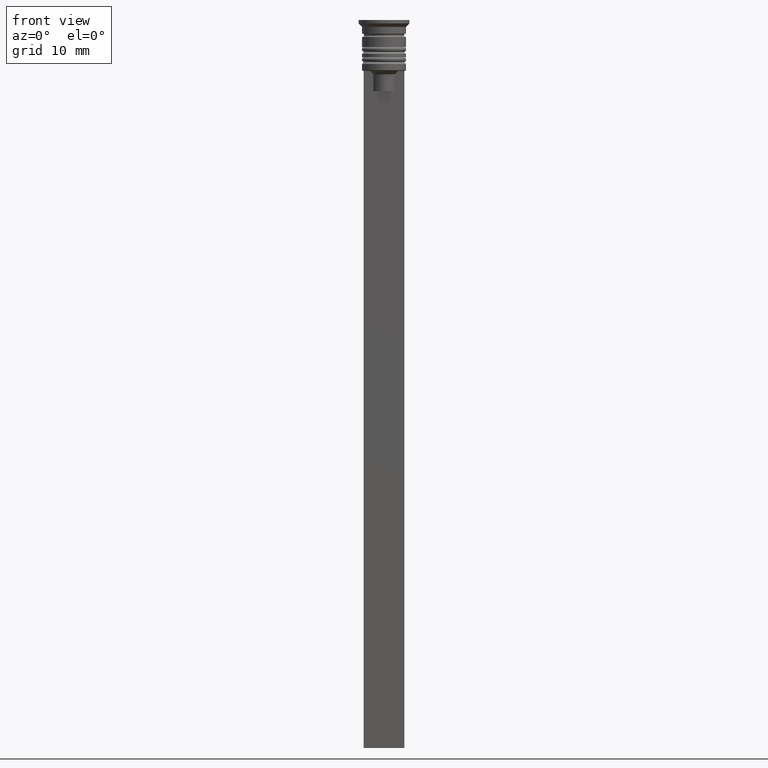
[diagram: clean part render]
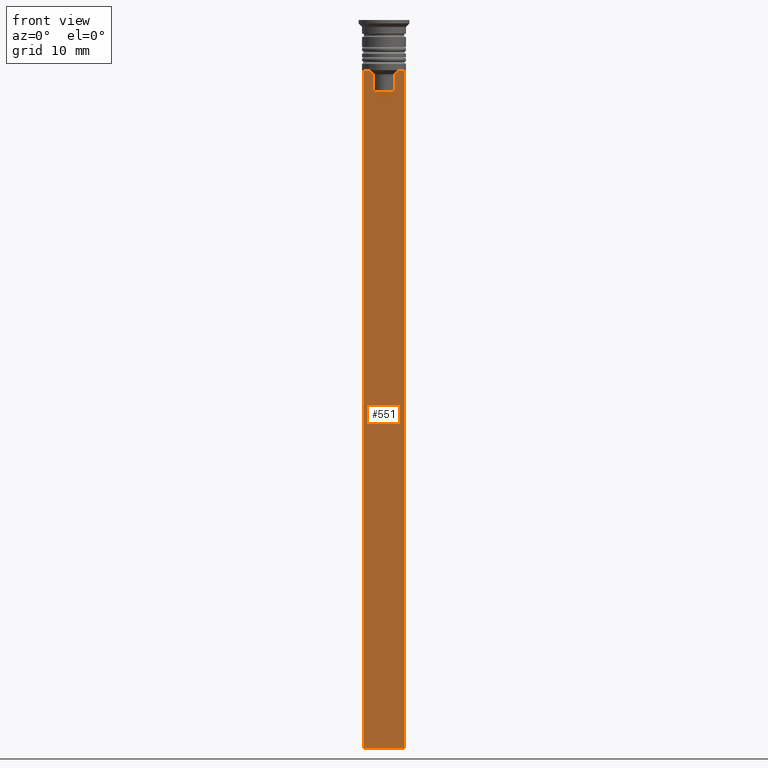
[diagram: same view with one face highlighted and labeled with its STEP entity id]
A machine part, front view. The second image highlights one B-rep face of the part: STEP entity #551.
In plain terms, the highlighted planar face has unit normal (0, -1, -0).
Its self-contained STEP definition (entity closure, byte-faithful):
#96 = DIRECTION ( 'NONE',  ( 1.000000000000000000, 0.000000000000000000, 0.000000000000000000 ) ) ;
#121 = ORIENTED_EDGE ( 'NONE', *, *, #888, .T. ) ;
#152 = EDGE_CURVE ( 'NONE', #1726, #988, #1025, .T. ) ;
#154 = DIRECTION ( 'NONE',  ( 1.000000000000000000, 0.000000000000000000, 0.000000000000000000 ) ) ;
#157 = VECTOR ( 'NONE', #1412, 1000.000000000000000 ) ;
#203 = EDGE_CURVE ( 'NONE', #1452, #400, #876, .T. ) ;
#257 = CARTESIAN_POINT ( 'NONE',  ( 2.999999999999995559, -0.3500000000000000333, -107.5000000000000000 ) ) ;
#266 = LINE ( 'NONE', #1092, #383 ) ;
#329 = ORIENTED_EDGE ( 'NONE', *, *, #837, .F. ) ;
#343 = EDGE_CURVE ( 'NONE', #1557, #1524, #266, .T. ) ;
#344 = ORIENTED_EDGE ( 'NONE', *, *, #1063, .F. ) ;
#346 = CARTESIAN_POINT ( 'NONE',  ( 1.952040775369266346, -0.3500000000000000333, -7.667021484535463394 ) ) ;
#368 = CARTESIAN_POINT ( 'NONE',  ( 1.612451549659713601, -0.3500000000000000333, -10.49999999999999822 ) ) ;
#377 = VECTOR ( 'NONE', #154, 1000.000000000000000 ) ;
#383 = VECTOR ( 'NONE', #96, 1000.000000000000000 ) ;
#400 = VERTEX_POINT ( 'NONE', #257 ) ;
#429 = LINE ( 'NONE', #1312, #1814 ) ;
#477 = DIRECTION ( 'NONE',  ( 0.000000000000000000, 0.000000000000000000, -1.000000000000000000 ) ) ;
#485 = VERTEX_POINT ( 'NONE', #943 ) ;
#551 = ADVANCED_FACE ( 'NONE', ( #587 ), #629, .T. ) ;
#587 = FACE_OUTER_BOUND ( 'NONE', #1164, .T. ) ;
#627 = CARTESIAN_POINT ( 'NONE',  ( 2.121320343559647270, -0.3500000000000000333, -7.500000000000000000 ) ) ;
#629 = PLANE ( 'NONE',  #1729 ) ;
#654 = CARTESIAN_POINT ( 'NONE',  ( -1.952043732028444500, -0.3500000000000000333, -7.667018567316270961 ) ) ;
#706 = DIRECTION ( 'NONE',  ( 0.000000000000000000, 0.000000000000000000, -1.000000000000000000 ) ) ;
#741 = CARTESIAN_POINT ( 'NONE',  ( 1.612451549659713601, -0.3500000000000000333, 0.000000000000000000 ) ) ;
#783 = EDGE_CURVE ( 'NONE', #400, #485, #1932, .T. ) ;
#833 = VERTEX_POINT ( 'NONE', #1578 ) ;
#837 = EDGE_CURVE ( 'NONE', #1524, #1726, #1072, .T. ) ;
#876 = LINE ( 'NONE', #1877, #963 ) ;
#888 = EDGE_CURVE ( 'NONE', #1716, #485, #429, .T. ) ;
#891 = VECTOR ( 'NONE', #1909, 1000.000000000000000 ) ;
#943 = CARTESIAN_POINT ( 'NONE',  ( -3.000000000000004441, -0.3500000000000000333, -107.5000000000000000 ) ) ;
#963 = VECTOR ( 'NONE', #1363, 1000.000000000000000 ) ;
#985 = CARTESIAN_POINT ( 'NONE',  ( 2.999999999999995559, -0.3500000000000000333, -7.500000000000000000 ) ) ;
#988 = VERTEX_POINT ( 'NONE', #627 ) ;
#1008 = CARTESIAN_POINT ( 'NONE',  ( 1.782523989086206795, -0.3500000000000000333, -7.833797837268088315 ) ) ;
#1012 = ORIENTED_EDGE ( 'NONE', *, *, #1297, .F. ) ;
#1025 = B_SPLINE_CURVE_WITH_KNOTS ( 'NONE', 3,
 ( #1534, #1008, #346, #1192 ),
 .UNSPECIFIED., .F., .F.,
 ( 4, 4 ),
 ( 0.008600796474521228696, 0.009317962624906526645 ),
 .UNSPECIFIED. ) ;
#1031 = CARTESIAN_POINT ( 'NONE',  ( 2.999999999999995559, -0.3500000000000000333, -7.500000000000000000 ) ) ;
#1048 = CARTESIAN_POINT ( 'NONE',  ( -1.612451549659713601, -0.3500000000000000333, -8.000000000000000000 ) ) ;
#1063 = EDGE_CURVE ( 'NONE', #833, #1243, #1163, .T. ) ;
#1072 = LINE ( 'NONE', #741, #157 ) ;
#1092 = CARTESIAN_POINT ( 'NONE',  ( 0.000000000000000000, -0.3500000000000000333, -10.49999999999999822 ) ) ;
#1152 = ORIENTED_EDGE ( 'NONE', *, *, #783, .F. ) ;
#1163 = B_SPLINE_CURVE_WITH_KNOTS ( 'NONE', 3,
 ( #1197, #654, #1370, #2161 ),
 .UNSPECIFIED., .F., .F.,
 ( 4, 4 ),
 ( 0.003684653461239337929, 0.004398058763641257696 ),
 .UNSPECIFIED. ) ;
#1164 = EDGE_LOOP ( 'NONE', ( #344, #1012, #121, #1152, #1580, #1411, #1679, #329, #1522, #1555 ) ) ;
#1178 = CARTESIAN_POINT ( 'NONE',  ( -1.612451549659713601, -0.3500000000000000333, -10.49999999999999822 ) ) ;
#1192 = CARTESIAN_POINT ( 'NONE',  ( 2.121320343559647270, -0.3500000000000000333, -7.500000000000000000 ) ) ;
#1197 = CARTESIAN_POINT ( 'NONE',  ( -2.121320343559647270, -0.3500000000000000333, -7.500000000000000000 ) ) ;
#1215 = VECTOR ( 'NONE', #1683, 1000.000000000000000 ) ;
#1243 = VERTEX_POINT ( 'NONE', #1048 ) ;
#1297 = EDGE_CURVE ( 'NONE', #1716, #833, #2170, .T. ) ;
#1309 = LINE ( 'NONE', #985, #377 ) ;
#1312 = CARTESIAN_POINT ( 'NONE',  ( -3.000000000000004441, -0.3500000000000000333, -1.459304675784417915 ) ) ;
#1315 = DIRECTION ( 'NONE',  ( 0.000000000000000000, -1.000000000000000000, -0.000000000000000000 ) ) ;
#1363 = DIRECTION ( 'NONE',  ( 0.000000000000000000, 0.000000000000000000, -1.000000000000000000 ) ) ;
#1370 = CARTESIAN_POINT ( 'NONE',  ( -1.782527878033862478, -0.3500000000000000333, -7.833794036819864637 ) ) ;
#1378 = EDGE_CURVE ( 'NONE', #988, #1452, #1309, .T. ) ;
#1411 = ORIENTED_EDGE ( 'NONE', *, *, #1378, .F. ) ;
#1412 = DIRECTION ( 'NONE',  ( -0.000000000000000000, -0.000000000000000000, 1.000000000000000000 ) ) ;
#1452 = VERTEX_POINT ( 'NONE', #1031 ) ;
#1522 = ORIENTED_EDGE ( 'NONE', *, *, #343, .F. ) ;
#1524 = VERTEX_POINT ( 'NONE', #368 ) ;
#1534 = CARTESIAN_POINT ( 'NONE',  ( 1.612451549659713601, -0.3500000000000000333, -8.000000000000000000 ) ) ;
#1555 = ORIENTED_EDGE ( 'NONE', *, *, #1952, .F. ) ;
#1557 = VERTEX_POINT ( 'NONE', #1178 ) ;
#1578 = CARTESIAN_POINT ( 'NONE',  ( -2.121320343559647270, -0.3500000000000000333, -7.500000000000000000 ) ) ;
#1580 = ORIENTED_EDGE ( 'NONE', *, *, #203, .F. ) ;
#1597 = CARTESIAN_POINT ( 'NONE',  ( 2.999999999999995559, -0.3500000000000000333, -107.5000000000000000 ) ) ;
#1661 = LINE ( 'NONE', #1985, #1889 ) ;
#1679 = ORIENTED_EDGE ( 'NONE', *, *, #152, .F. ) ;
#1683 = DIRECTION ( 'NONE',  ( 1.000000000000000000, 0.000000000000000000, 0.000000000000000000 ) ) ;
#1716 = VERTEX_POINT ( 'NONE', #2151 ) ;
#1726 = VERTEX_POINT ( 'NONE', #1988 ) ;
#1729 = AXIS2_PLACEMENT_3D ( 'NONE', #1972, #1315, #477 ) ;
#1806 = DIRECTION ( 'NONE',  ( 0.000000000000000000, 0.000000000000000000, -1.000000000000000000 ) ) ;
#1814 = VECTOR ( 'NONE', #1806, 1000.000000000000000 ) ;
#1877 = CARTESIAN_POINT ( 'NONE',  ( 2.999999999999995559, -0.3500000000000000333, -1.459304675784417915 ) ) ;
#1889 = VECTOR ( 'NONE', #706, 1000.000000000000000 ) ;
#1909 = DIRECTION ( 'NONE',  ( -1.000000000000000000, 0.000000000000000000, 0.000000000000000000 ) ) ;
#1932 = LINE ( 'NONE', #1597, #891 ) ;
#1952 = EDGE_CURVE ( 'NONE', #1243, #1557, #1661, .T. ) ;
#1972 = CARTESIAN_POINT ( 'NONE',  ( 2.999999999999995559, -0.3500000000000000333, -1.459304675784417915 ) ) ;
#1985 = CARTESIAN_POINT ( 'NONE',  ( -1.612451549659713601, -0.3500000000000000333, 0.000000000000000000 ) ) ;
#1988 = CARTESIAN_POINT ( 'NONE',  ( 1.612451549659713601, -0.3500000000000000333, -8.000000000000000000 ) ) ;
#2145 = CARTESIAN_POINT ( 'NONE',  ( 2.999999999999995559, -0.3500000000000000333, -7.500000000000000000 ) ) ;
#2151 = CARTESIAN_POINT ( 'NONE',  ( -3.000000000000004441, -0.3500000000000000333, -7.500000000000000000 ) ) ;
#2161 = CARTESIAN_POINT ( 'NONE',  ( -1.612451549659713601, -0.3500000000000000333, -8.000000000000000000 ) ) ;
#2170 = LINE ( 'NONE', #2145, #1215 ) ;